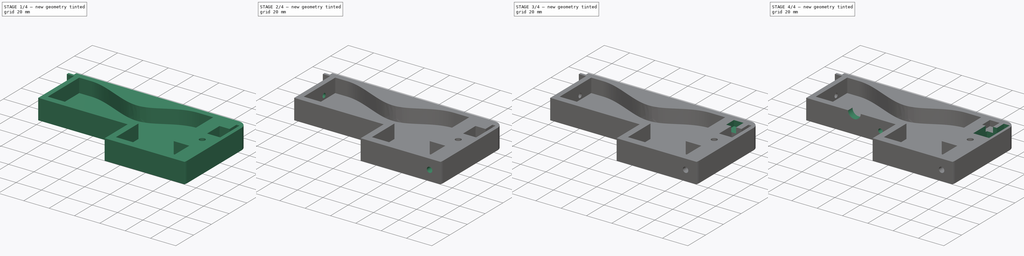
[diagram: build sequence overview — one tinted view per stage of 4, left to right]
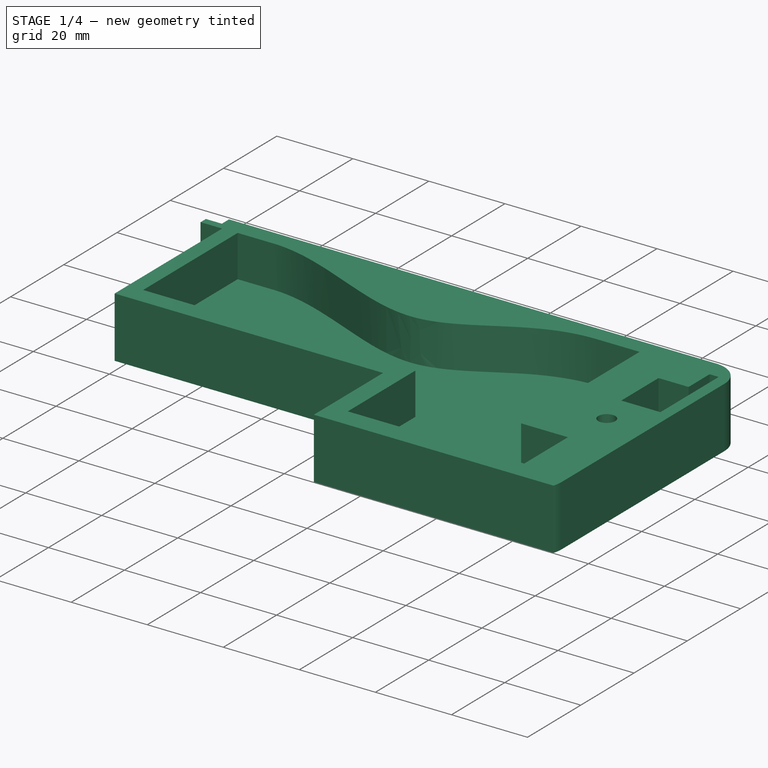
[diagram: stage 1 of 4 — iso view after this stage's code; geometry added in this stage tinted green]
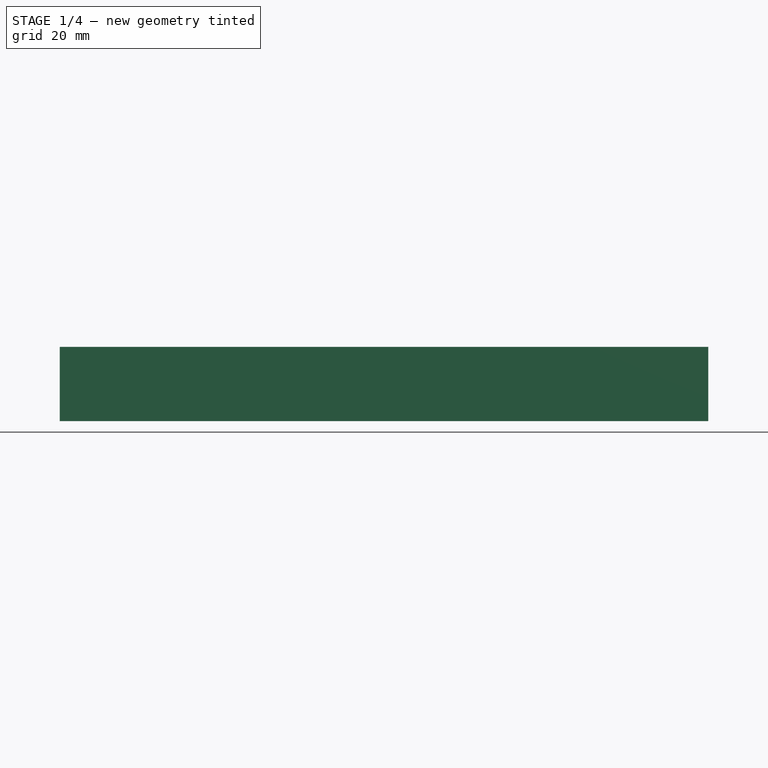
[diagram: stage 1 of 4 — front view after this stage's code; geometry added in this stage tinted green]
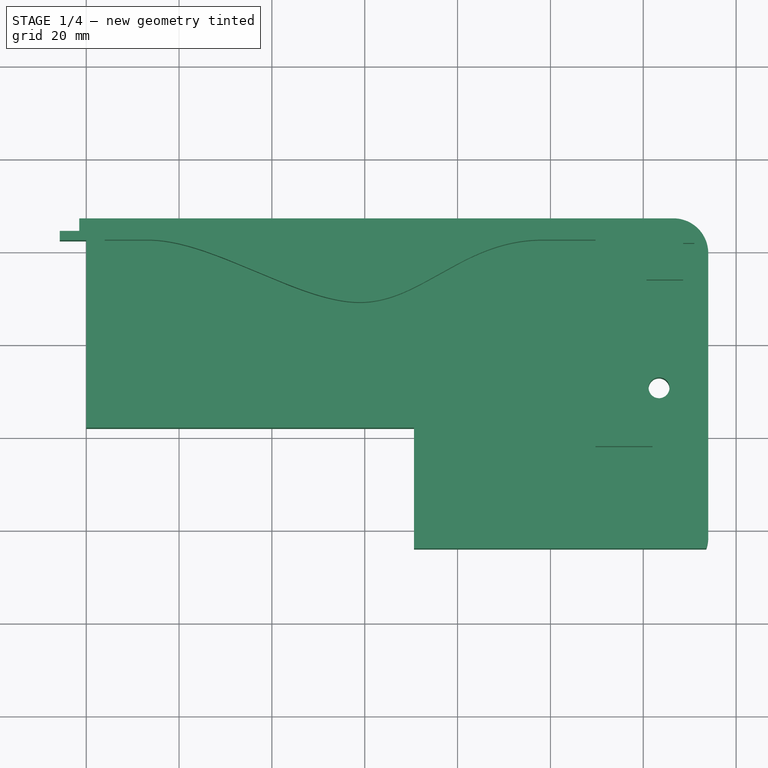
[diagram: stage 1 of 4 — top view after this stage's code; geometry added in this stage tinted green]
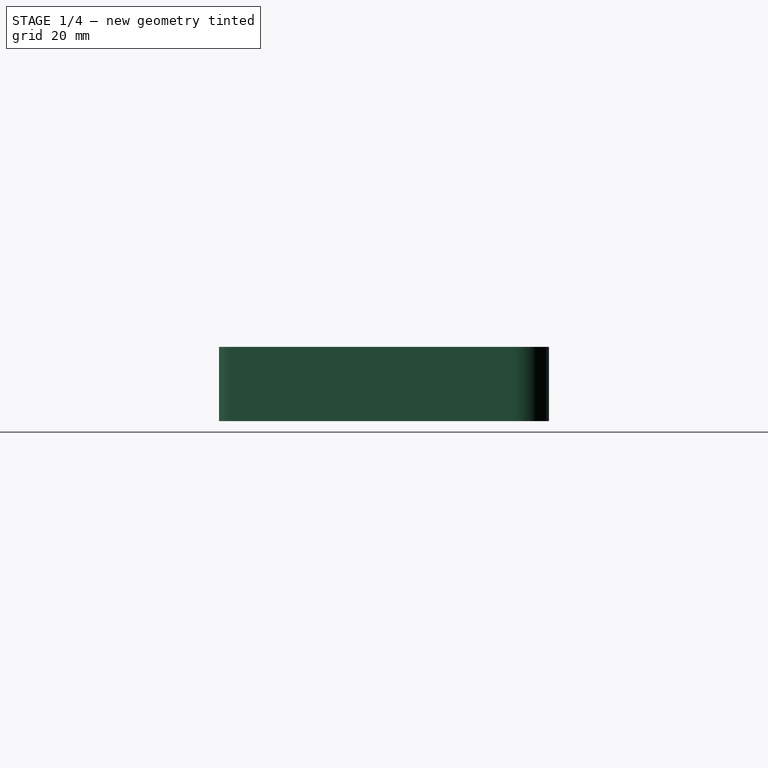
[diagram: stage 1 of 4 — right view after this stage's code; geometry added in this stage tinted green]
FCSTD DOCUMENT  (FreeCAD 0.21R33668 +7 (Git))
Label: side_front_L
License: All rights reserved
LicenseURL: http://en.wikipedia.org/wiki/All_rights_reserved
objects: Sketcher::SketchObject×9, PartDesign::Pocket×8, PartDesign::Plane×3, PartDesign::Pad×1, PartDesign::CoordinateSystem×1, PartDesign::Body×1, App::Part×1
note: 32 computed .brp shape members not serialized (recipe doc carries the construction recipe); baked Part::Feature solids carry a one-line shape summary decoded from their .brp
EXTERNAL_REF file=planB.FCStd obj=Spreadsheet

FEATURE [Sketcher::SketchObject] Sketch
  FullyConstrained = false
  MapMode = 5
  Support = -> [XY_Plane]
  expr: Constraints[26] = planB#<<data>>.clearance_m4
  sketch-geometry (27):
    g0: LineSegment StartX=75.6 StartY=36 StartZ=0 EndX=75.6 EndY=0 EndZ=0
    g1: LineSegment StartX=75.6 StartY=0 StartZ=0 EndX=134 EndY=0 EndZ=0
    g2: LineSegment StartX=126.5 StartY=107.1 StartZ=0 EndX=-1.5 EndY=107.1 EndZ=0
    g3: LineSegment StartX=-1.5 StartY=107.1 StartZ=0 EndX=-1.5 EndY=104.4 EndZ=0
    g4: LineSegment StartX=-1.5 StartY=104.4 StartZ=0 EndX=-5.7 EndY=104.4 EndZ=0
    g5: LineSegment StartX=-5.7 StartY=104.4 StartZ=0 EndX=-5.7 EndY=102.4 EndZ=0
    g6: LineSegment StartX=-5.7 StartY=102.4 StartZ=0 EndX=0 EndY=102.4 EndZ=0
    g7: Circle CenterX=123.4 CenterY=70.6 CenterZ=0 NormalX=0 NormalY=0 NormalZ=1 AngleXU=0 Radius=2.25
    g8: LineSegment StartX=134 StartY=0 StartZ=0 EndX=134 EndY=36 EndZ=0
    g9: LineSegment StartX=0 StartY=36 StartZ=0 EndX=48.7292 EndY=36 EndZ=0
    g10: LineSegment StartX=48.7292 StartY=36 StartZ=0 EndX=70.6 EndY=36 EndZ=0
    g11: LineSegment StartX=70.6 StartY=36 StartZ=0 EndX=75.6 EndY=36 EndZ=0
    g12: LineSegment StartX=0 StartY=62 StartZ=0 EndX=70.6 EndY=62 EndZ=0
    g13: LineSegment StartX=70.6 StartY=62 StartZ=0 EndX=70.6 EndY=36 EndZ=0
    g14: LineSegment StartX=0 StartY=102.4 StartZ=0 EndX=0 EndY=62 EndZ=0
    g15: LineSegment StartX=0 StartY=62 StartZ=0 EndX=0 EndY=36 EndZ=0
    g16: ArcOfCircle CenterX=126.5 CenterY=99.6 CenterZ=0 NormalX=0 NormalY=0 NormalZ=1 AngleXU=0 Radius=7.5 StartAngle=-9e-16 EndAngle=1.5708
    g17: GeomPoint X=134 Y=107.1 Z=0
    g18: LineSegment StartX=134 StartY=44.7751 StartZ=0 EndX=134 EndY=38.5 EndZ=0
    g19: LineSegment StartX=126.5 StartY=31 StartZ=0 EndX=75.6 EndY=31 EndZ=0
    g20: GeomPoint X=134 Y=31 Z=0
    g21: LineSegment StartX=75.6 StartY=36 StartZ=0 EndX=133.571 EndY=36 EndZ=0
    g22: LineSegment StartX=133.571 StartY=36 StartZ=0 EndX=134 EndY=36 EndZ=0
    g23: ArcOfCircle CenterX=126.5 CenterY=38.5 CenterZ=0 NormalX=0 NormalY=0 NormalZ=1 AngleXU=0 Radius=7.5 StartAngle=4.71239 EndAngle=5.94335
    g24: ArcOfCircle CenterX=126.5 CenterY=38.5 CenterZ=0 NormalX=0 NormalY=0 NormalZ=1 AngleXU=0 Radius=7.5 StartAngle=5.94335 EndAngle=6.28319
    g25: LineSegment StartX=134 StartY=36 StartZ=0 EndX=134 EndY=38.5 EndZ=0
    g26: LineSegment StartX=134 StartY=38.5 StartZ=0 EndX=134 EndY=99.6 EndZ=0
  constraints (72):
    c: PointOnObject(g9,g-2)
    c: Coincident(g11,g0)
    c: PointOnObject(g0,g-1)
    c: Vertical(g0)
    c: Coincident(g0,g1)
    c: PointOnObject(g1,g-1)
    c: Coincident(g1,g8)
    c: Horizontal(g2)
    c: Coincident(g2,g3)
    c: Vertical(g3)
    c: Coincident(g3,g4)
    c: Horizontal(g4)
    c: Coincident(g4,g5)
    c: Vertical(g5)
    c: Coincident(g5,g6)
    c: PointOnObject(g6,g-2)
    c: Horizontal(g6)
    c: Coincident(g6,g14)
    c: Coincident(g15,g9)
    c: Distance(g6) = 5.7
    c: Distance(g5) = 2
    c: Distance(g3) = 2.7
    c: Distance(g0) = 36
    c: DistanceX(g1) = 134
    c: DistanceY(g2) = 107.1
    c: DistanceX(g11) = 75.6
    c: Diameter(g7) = 4.5
    c: DistanceX(g7) = 123.4
    c: DistanceY(g7) = 70.6
    c: Coincident(g21,g11)
    c: Coincident(g8,g25)
    c: Vertical(g8)
    c: Coincident(g8,g22)
    c: Coincident(g9,g10)
    c: Horizontal(g9)
    c: Coincident(g10,g11)
    c: Horizontal(g10)
    c: Horizontal(g11)
    c: Horizontal(g12)
    c: Coincident(g12,g13)
    c: Coincident(g13,g11)
    c: Vertical(g13)
    c: DistanceX(g12) = 70.6
    c: DistanceY(g12) = 62
    c: Coincident(g14,g15)
    c: Coincident(g14,g12)
    c: Distance(g4) = 4.2
    c: Vertical(g14)
    c: PointOnObject(g17,g2)
    c: Tangent(g2,g16) = -1.5708
    c: Tangent(g26,g16) = -1.5708
    c: PointOnObject(g19,g0)
    c: Horizontal(g19)
    c: PointOnObject(g20,g18)
    c: PointOnObject(g20,g19)
    c: Tangent(g18,g24) = 1.5708
    c: Tangent(g19,g23) = 1.5708
    c: Vertical(g18)
    c: Diameter(g16) = 15
    c: Coincident(g21,g22)
    c: Horizontal(g21)
    c: Horizontal(g22)
    c: Distance(g19,g21) = 5
    c: Coincident(g23,g24)
    c: Coincident(g23,g24)
    c: Equal(g23,g16)
    c: Coincident(g25,g26)
    c: Vertical(g25)
    c: Vertical(g26)
    c: PointOnObject(g17,g26)
    c: Coincident(g25,g18)
    c: Coincident(g21,g23)
FEATURE [PartDesign::Pad] Pad
  Direction = (0,0,1)
  Length = 16
  Length2 = 10
  Profile = -> Sketch
  ReferenceAxis = -> Sketch [N_Axis]
  Type = 0
FEATURE [PartDesign::CoordinateSystem] LCS_0
  AttacherType = Attacher::AttachEngine3D
  MapMode = 2
  Support = -> [X_Axis001]
FEATURE [PartDesign::Plane] DatumPlane  label="insideplane"
  AttachmentOffset = pos=(0,0,5) rot=(0,0,1;0rad)
  Length = 187.985
  MapMode = 5
  Placement = pos=(0,0,5) rot=(0,0,1;0rad)
  ResizeMode = 0
  Support = -> [XY_Plane]
  Width = 161.085
FEATURE [Sketcher::SketchObject] Sketch001
  FullyConstrained = false
  MapMode = 5
  Placement = pos=(0,0,5) rot=(0,0,1;0rad)
  Support = -> [DatumPlane]
  expr: Constraints[30] = planB#<<data>>.L_thickness + 0.4 * 2
  expr: Constraints[31] = planB#<<data>>.L_size - planB#<<data>>.L_thickness
  expr: Constraints[32] = planB#<<data>>.L_size + 2 * 0.4
  sketch-geometry (39):
    g0: LineSegment StartX=116.7 StartY=102.3 StartZ=0 EndX=124.3 EndY=102.3 EndZ=0
    g1: LineSegment StartX=116.7 StartY=93.6 StartZ=0 EndX=116.7 EndY=102.3 EndZ=0
    g2: LineSegment StartX=128.6 StartY=101.8 StartZ=0 EndX=131 EndY=101.8 EndZ=0
    g3: LineSegment StartX=131 StartY=101.8 StartZ=0 EndX=131 EndY=79.9 EndZ=0
    g4: LineSegment StartX=131 StartY=79.9 StartZ=0 EndX=120.7 EndY=79.9 EndZ=0
    g5: LineSegment StartX=128.6 StartY=93.9 StartZ=0 EndX=128.6 EndY=101.8 EndZ=0
    g6: LineSegment StartX=80 StartY=41.6 StartZ=0 EndX=80 EndY=5 EndZ=0
    g7: LineSegment StartX=80 StartY=5 StartZ=0 EndX=122 EndY=5 EndZ=0
    g8: LineSegment StartX=120.7 StartY=79.9 StartZ=0 EndX=120.7 EndY=93.6 EndZ=0
    g9: LineSegment StartX=120.7 StartY=93.6 StartZ=0 EndX=120.7 EndY=93.9 EndZ=0
    g10: LineSegment StartX=124.3 StartY=102.3 StartZ=0 EndX=124.3 EndY=93.9 EndZ=0
    g11: LineSegment StartX=124.3 StartY=93.9 StartZ=0 EndX=124.3 EndY=93.6 EndZ=0
    g12: LineSegment StartX=120.7 StartY=93.9 StartZ=0 EndX=124.3 EndY=93.9 EndZ=0
    g13: LineSegment StartX=124.3 StartY=93.9 StartZ=0 EndX=128.6 EndY=93.9 EndZ=0
    g14: LineSegment StartX=124.3 StartY=93.6 StartZ=0 EndX=120.7 EndY=93.6 EndZ=0
    g15: LineSegment StartX=120.7 StartY=93.6 StartZ=0 EndX=116.7 EndY=93.6 EndZ=0
    g16-g20: Circle x5 (B-spline internal-alignment scaffolding for g21; pole/knot coordinates omitted)
    g21: BSplineCurve PolesCount=5 KnotsCount=3 Degree=3 IsPeriodic=0
    g22: GeomPoint X=13.2891 Y=102.5 Z=0
    g23: GeomPoint X=58.9375 Y=89.0501 Z=0
    g24: GeomPoint X=97.4529 Y=102.5 Z=0
    g25: LineSegment StartX=13.2891 StartY=102.5 StartZ=0 EndX=4 EndY=102.5 EndZ=0
    g26: LineSegment StartX=109.7 StartY=102.5 StartZ=0 EndX=98.3319 EndY=102.5 EndZ=0
    g27: LineSegment StartX=98.3319 StartY=102.5 StartZ=0 EndX=13.2891 EndY=102.5 EndZ=0
    g28: LineSegment StartX=109.7 StartY=58 StartZ=0 EndX=109.7 EndY=102.5 EndZ=0
    g29: LineSegment StartX=122 StartY=58 StartZ=0 EndX=109.7 EndY=58 EndZ=0
    g30: LineSegment StartX=122 StartY=5 StartZ=0 EndX=122 EndY=41.6 EndZ=0
    g31: LineSegment StartX=122 StartY=41.6 StartZ=0 EndX=122 EndY=58 EndZ=0
    g32: LineSegment StartX=122 StartY=41.6 StartZ=0 EndX=80 EndY=41.6 EndZ=0
    g33: LineSegment StartX=4 StartY=102.5 StartZ=0 EndX=4 EndY=67 EndZ=0
    g34: LineSegment StartX=4 StartY=67 StartZ=0 EndX=4 EndY=41.6 EndZ=0
    g35: LineSegment StartX=4 StartY=41.6 StartZ=0 EndX=75.6 EndY=41.6 EndZ=0
    g36: LineSegment StartX=75.6 StartY=41.6 StartZ=0 EndX=80 EndY=41.6 EndZ=0
    g37: LineSegment StartX=4 StartY=67 StartZ=0 EndX=75.6 EndY=67 EndZ=0
    g38: LineSegment StartX=75.6 StartY=67 StartZ=0 EndX=75.6 EndY=41.6 EndZ=0
  constraints (93):
    c: Coincident(g0,g10)
    c: Coincident(g11,g14)
    c: Coincident(g15,g1)
    c: Coincident(g1,g0)
    c: Horizontal(g0)
    c: Vertical(g1)
    c: Coincident(g7,g30)
    c: Coincident(g28,g26)
    c: Coincident(g25,g33)
    c: Coincident(g34,g35)
    c: Horizontal(g2)
    c: Coincident(g2,g3)
    c: Vertical(g3)
    c: Coincident(g3,g4)
    c: Horizontal(g4)
    c: Coincident(g4,g8)
    c: Coincident(g9,g12)
    c: Coincident(g13,g5)
    c: Coincident(g5,g2)
    c: Vertical(g5)
    c: Coincident(g36,g6)
    c: Coincident(g6,g7)
    c: Horizontal(g7)
    c: Vertical(g6)
    c: DistanceX(g-2,g25) = 4
    c: DistanceY(g34) = 41.6
    c: DistanceY(g6) = 5
    c: DistanceX(g6) = 80
    c: DistanceY(g0) = 102.3
    c: DistanceY(g11) = 93.6
    c: Distance(g2) = 2.4
    c: Distance(g5) = 7.9
    c: Distance(g4) = 10.3
    c: DistanceX(g13) = 128.6
    c: Coincident(g8,g9)
    c: Vertical(g8)
    c: Vertical(g9)
    c: Distance(g8,g9) = 14
    c: Coincident(g10,g11)
    c: Vertical(g10)
    c: Vertical(g11)
    c: Coincident(g12,g13)
    c: Horizontal(g12)
    c: Horizontal(g13)
    c: Coincident(g10,g12)
    c: Coincident(g14,g15)
    c: Horizontal(g14)
    c: Horizontal(g15)
    c: Distance(g9,g14) = 0.3
    c: Coincident(g14,g8)
    c: DistanceX(g0) = 124.3
    c: DistanceX(g0) = 116.7
    c: DistanceY(g25) = 102.5
    c: Weight(g16) = 1
    c: Equal(g16, g17-g20) x4
    c: InternalAlignment(g16-g20 -> g21) x5
    c: InternalAlignment(g22,g21)
    c: InternalAlignment(g23,g21)
    c: Coincident(g27,g25)
    c: Horizontal(g25)
    c: PointOnObject(g17,g25)
    c: Coincident(g26,g27)
    c: Horizontal(g26)
    c: Horizontal(g27)
    c: PointOnObject(g19,g26)
    c: Coincident(g21,g25)
    c: Coincident(g26,g21)
    c: Coincident(g29,g28)
    c: Vertical(g28)
    c: Distance(g1,g28) = 7
    c: Coincident(g31,g29)
    c: Horizontal(g29)
    c: DistanceX(g31) = 122
    c: DistanceY(g28) = 58
    c: Coincident(g30,g31)
    c: Vertical(g30)
    c: Vertical(g31)
    c: Coincident(g32,g31)
    c: Coincident(g32,g36)
    c: Horizontal(g32)
    c: Coincident(g33,g34)
    c: Vertical(g33)
    c: Vertical(g34)
    c: Coincident(g35,g36)
    c: Horizontal(g35)
    c: Horizontal(g36)
    c: Coincident(g33,g37)
    c: Horizontal(g37)
    c: Coincident(g37,g38)
    c: Coincident(g38,g36)
    c: Vertical(g38)
    c: DistanceX(g37) = 75.6
    c: DistanceY(g37) = 67
FEATURE [PartDesign::Pocket] Pocket
  BaseFeature = -> Pad
  Direction = (0,0,-1)
  Length = 21
  Length2 = 5
  Profile = -> Sketch001
  ReferenceAxis = -> Sketch001 [N_Axis]
  Reversed = true
  Type = 0
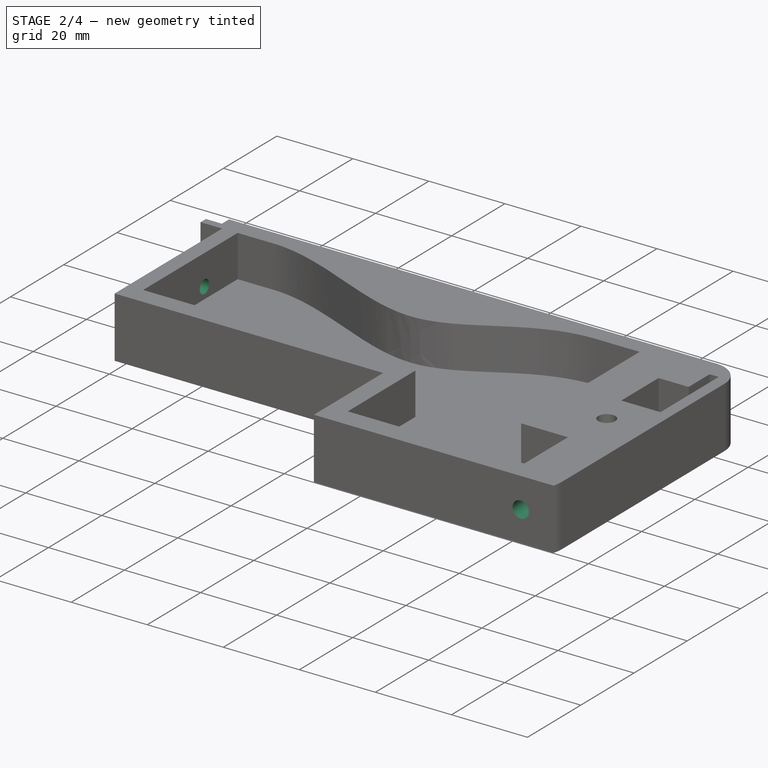
[diagram: stage 2 of 4 — iso view after this stage's code; geometry added in this stage tinted green]
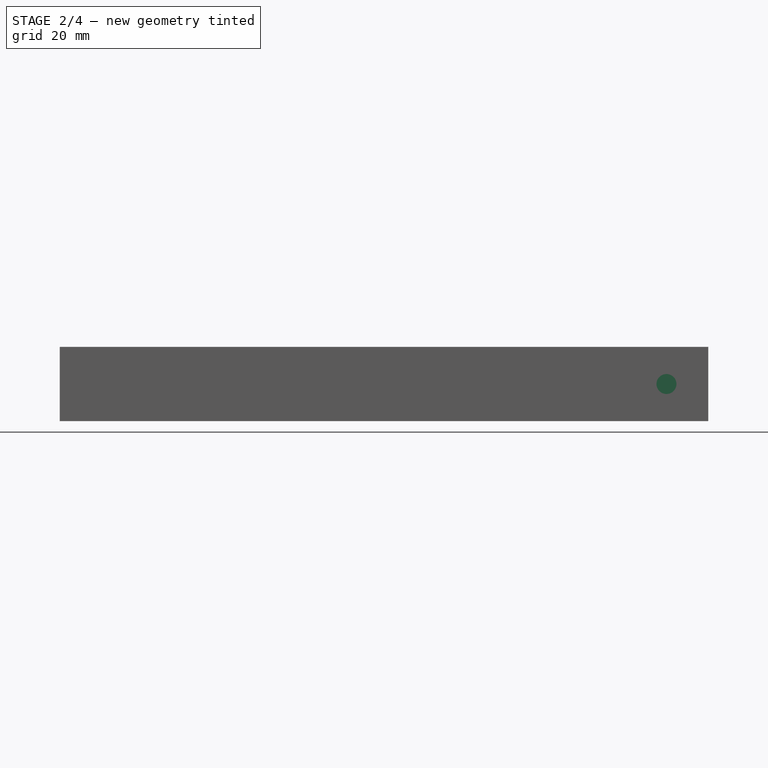
[diagram: stage 2 of 4 — front view after this stage's code; geometry added in this stage tinted green]
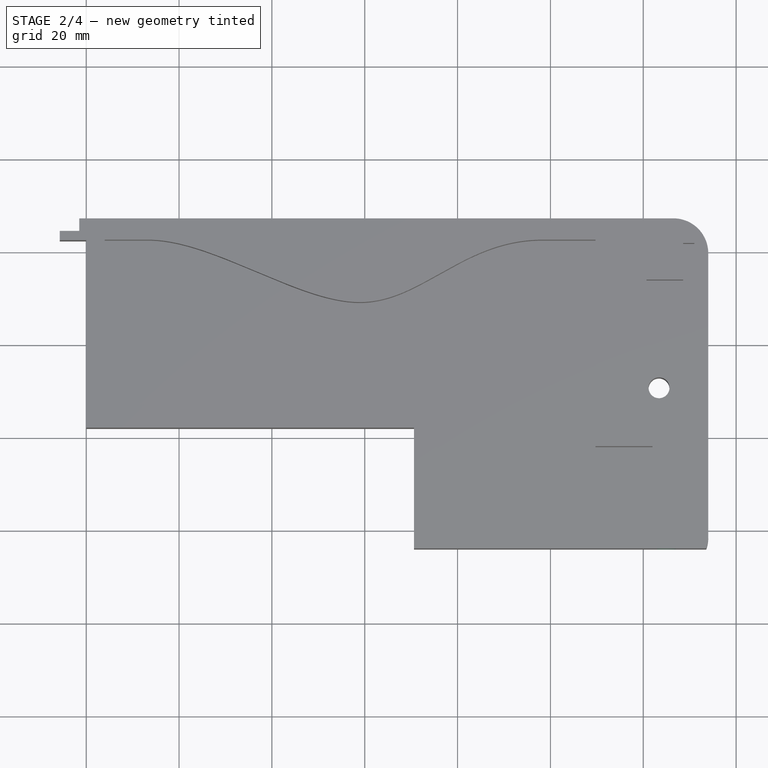
[diagram: stage 2 of 4 — top view after this stage's code; geometry added in this stage tinted green]
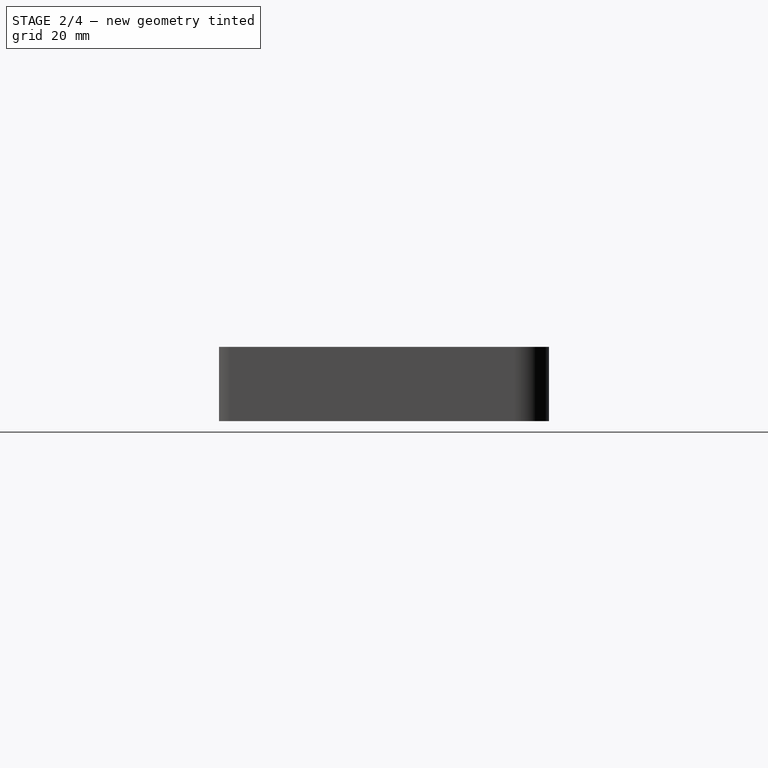
[diagram: stage 2 of 4 — right view after this stage's code; geometry added in this stage tinted green]
FEATURE [Sketcher::SketchObject] Sketch002
  FullyConstrained = false
  MapMode = 5
  Placement = pos=(0,0,0) rot=(0.57735,0.57735,0.57735;2.0944rad)
  Support = -> [YZ_Plane]
  expr: Constraints[0] = planB#<<data>>.clearance_m3
  sketch-geometry (4):
    g0: Circle CenterX=12 CenterY=8 CenterZ=0 NormalX=0 NormalY=0 NormalZ=1 AngleXU=0 Radius=1.75
    g1: LineSegment StartX=12 StartY=8 StartZ=0 EndX=134.137 EndY=8 EndZ=0
    g2: Circle CenterX=60 CenterY=8 CenterZ=0 NormalX=0 NormalY=0 NormalZ=1 AngleXU=0 Radius=1.75
    g3: Circle CenterX=90 CenterY=8 CenterZ=0 NormalX=0 NormalY=0 NormalZ=1 AngleXU=0 Radius=1.75
  constraints (11):
    c: Diameter(g0) = 3.5
    c: DistanceY(g0) = 8
    c: DistanceX(g0) = 12
    c: Coincident(g1,g0)
    c: Horizontal(g1)
    c: PointOnObject(g2,g1)
    c: PointOnObject(g3,g1)
    c: Equal(g0,g2)
    c: Equal(g2,g3)
    c: DistanceX(g2) = 60
    c: DistanceX(g3) = 90
FEATURE [PartDesign::Pocket] Pocket001
  BaseFeature = -> Pocket
  Direction = (-1,2e-16,-3e-16)
  Length = 23
  Length2 = 5
  Profile = -> Sketch002
  ReferenceAxis = -> Sketch002 [N_Axis]
  Reversed = true
  Type = 0
FEATURE [Sketcher::SketchObject] Sketch003
  FullyConstrained = true
  MapMode = 5
  Placement = pos=(0,0,0) rot=(1,0,0;1.5708rad)
  Support = -> [XZ_Plane]
  expr: Constraints[5] = planB#<<data>>.clearance_m3
  expr: Constraints[9] = planB#<<data>>.insert_diameter
  sketch-geometry (4):
    g0: Circle CenterX=58.6 CenterY=8 CenterZ=0 NormalX=0 NormalY=0 NormalZ=1 AngleXU=0 Radius=1.75
    g1: Circle CenterX=8 CenterY=8 CenterZ=0 NormalX=0 NormalY=0 NormalZ=1 AngleXU=0 Radius=1.75
    g2: LineSegment StartX=58.6 StartY=8 StartZ=0 EndX=8 EndY=8 EndZ=0
    g3: Circle CenterX=125 CenterY=8 CenterZ=0 NormalX=0 NormalY=0 NormalZ=1 AngleXU=0 Radius=2.15
  constraints (11):
    c: Coincident(g2,g0)
    c: Coincident(g2,g1)
    c: Horizontal(g2)
    c: DistanceY(g1) = 8
    c: Equal(g1,g0)
    c: Diameter(g0) = 3.5
    c: DistanceX(g-2,g1) = 8
    c: DistanceX(g0) = 58.6
    c: PointOnObject(g3,g2)
    c: Diameter(g3) = 4.3
    c: DistanceX(g3) = 125
FEATURE [PartDesign::Pocket] Pocket002
  BaseFeature = -> Pocket001
  Direction = (0,1,2e-16)
  Length = 46
  Length2 = 5
  Profile = -> Sketch003
  ReferenceAxis = -> Sketch003 [N_Axis]
  Type = 0
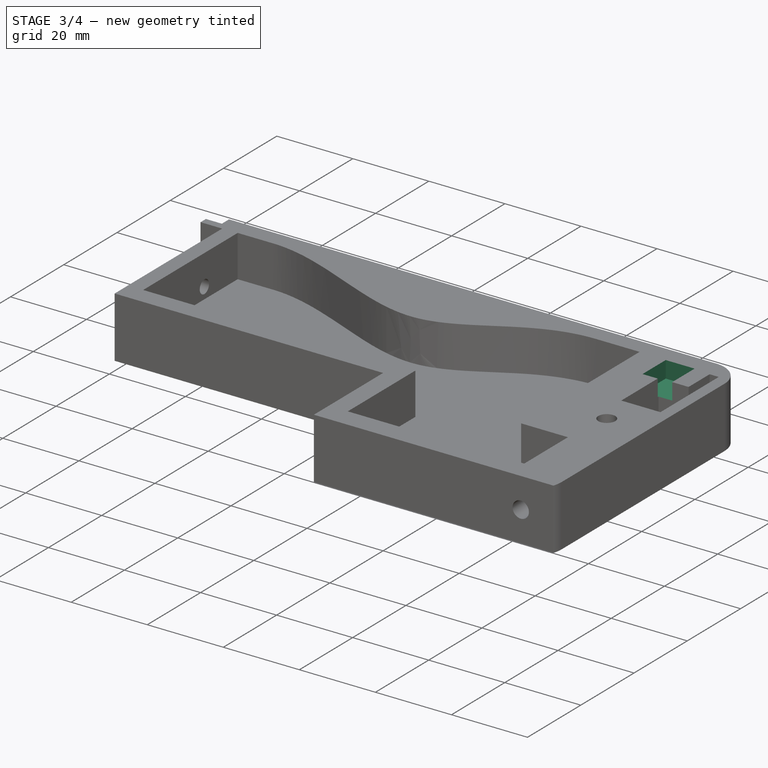
[diagram: stage 3 of 4 — iso view after this stage's code; geometry added in this stage tinted green]
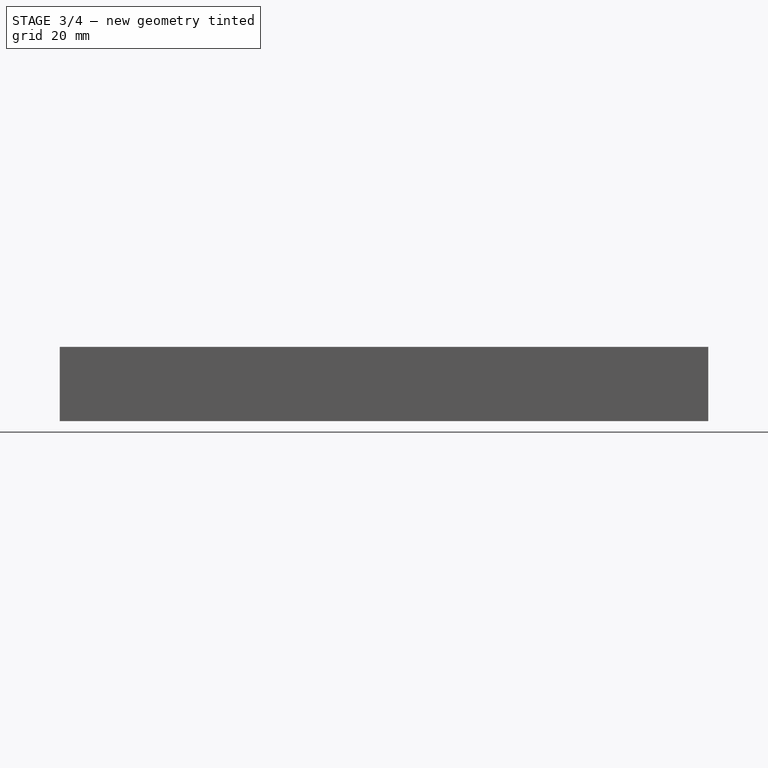
[diagram: stage 3 of 4 — front view after this stage's code; geometry added in this stage tinted green]
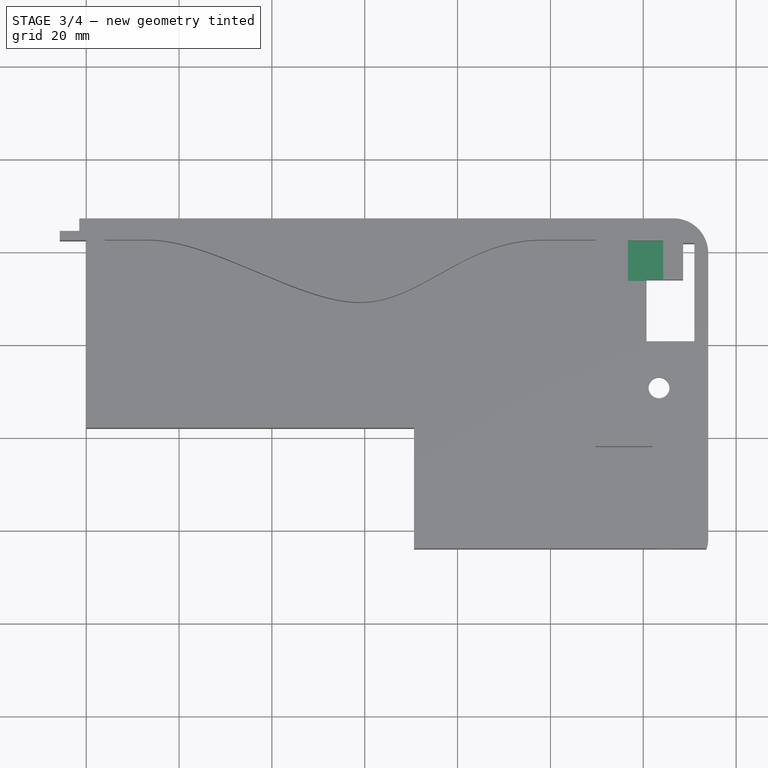
[diagram: stage 3 of 4 — top view after this stage's code; geometry added in this stage tinted green]
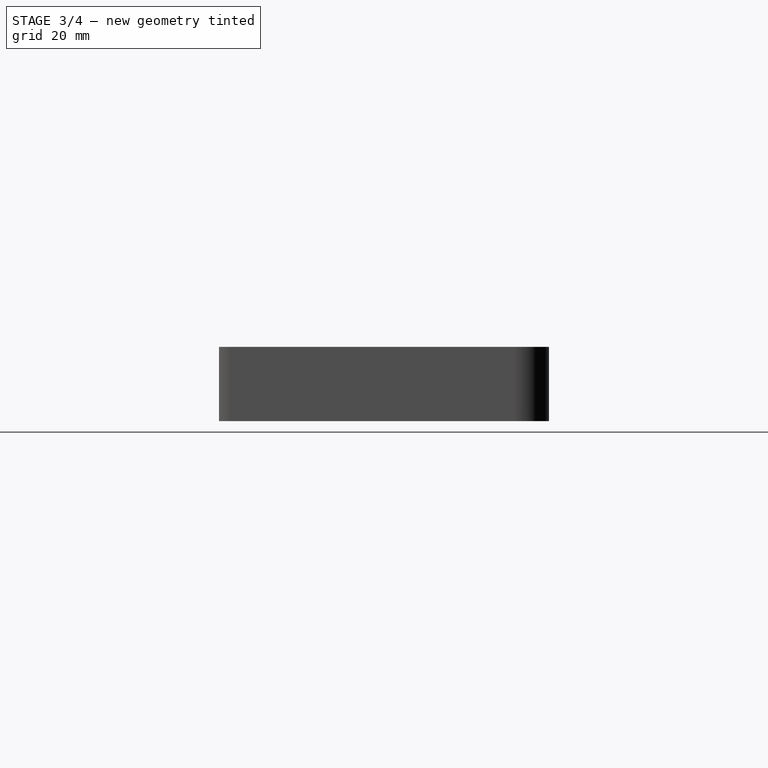
[diagram: stage 3 of 4 — right view after this stage's code; geometry added in this stage tinted green]
FEATURE [PartDesign::Plane] DatumPlane001
  AttachmentOffset = pos=(0,0,107) rot=(0,0,1;0rad)
  Length = 148.354
  MapMode = 5
  Placement = pos=(107,-2.38e-14,2.38e-14) rot=(0.57735,0.57735,0.57735;2.0944rad)
  ResizeMode = 0
  Support = -> [YZ_Plane]
  Width = 66.2542
FEATURE [Sketcher::SketchObject] Sketch005
  FullyConstrained = true
  MapMode = 5
  Placement = pos=(0,0,5) rot=(0,0,1;0rad)
  Support = -> [DatumPlane]
  sketch-geometry (1):
    g0: Circle CenterX=123.4 CenterY=70.6 CenterZ=0 NormalX=0 NormalY=0 NormalZ=1 AngleXU=0 Radius=8
  constraints (3):
    c: DistanceX(g0) = 123.4
    c: DistanceY(g0) = 70.6
    c: Diameter(g0) = 16
FEATURE [PartDesign::Pocket] Pocket004
  BaseFeature = -> Pocket002
  Direction = (0,0,-1)
  Length = 10
  Length2 = 5
  Midplane = true
  Profile = -> Sketch005
  ReferenceAxis = -> Sketch005 [N_Axis]
  Type = 0
FEATURE [Sketcher::SketchObject] Sketch007
  FullyConstrained = true
  MapMode = 5
  Placement = pos=(0,0,5) rot=(0,0,1;0rad)
  Support = -> [DatumPlane]
  sketch-geometry (4):
    g0: LineSegment StartX=131 StartY=101.8 StartZ=0 EndX=120.5 EndY=101.8 EndZ=0
    g1: LineSegment StartX=120.5 StartY=101.8 StartZ=0 EndX=120.5 EndY=80.8 EndZ=0
    g2: LineSegment StartX=120.5 StartY=80.8 StartZ=0 EndX=131 EndY=80.8 EndZ=0
    g3: LineSegment StartX=131 StartY=80.8 StartZ=0 EndX=131 EndY=101.8 EndZ=0
  constraints (12):
    c: Coincident(g0,g1)
    c: Coincident(g1,g2)
    c: Coincident(g2,g3)
    c: Coincident(g3,g0)
    c: Horizontal(g0)
    c: Horizontal(g2)
    c: Vertical(g1)
    c: Vertical(g3)
    c: Distance(g2) = 10.5
    c: Distance(g3) = 21
    c: DistanceY(g0) = 101.8
    c: DistanceX(g0) = 131
FEATURE [Sketcher::SketchObject] Sketch008
  FullyConstrained = false
  MapMode = 5
  Placement = pos=(0,0,5) rot=(0,0,1;0rad)
  Support = -> [DatumPlane]
  sketch-geometry (6):
    g0: LineSegment StartX=127.329 StartY=102.8 StartZ=0 EndX=132 EndY=102.8 EndZ=0
    g1: LineSegment StartX=132 StartY=102.8 StartZ=0 EndX=132 EndY=79.4945 EndZ=0
    g2: LineSegment StartX=132 StartY=79.4945 StartZ=0 EndX=119.5 EndY=79.4945 EndZ=0
    g3: LineSegment StartX=119.5 StartY=79.4945 StartZ=0 EndX=119.5 EndY=94.9604 EndZ=0
    g4: LineSegment StartX=119.5 StartY=94.9604 StartZ=0 EndX=127.329 EndY=94.9604 EndZ=0
    g5: LineSegment StartX=127.329 StartY=94.9604 StartZ=0 EndX=127.329 EndY=102.8 EndZ=0
  constraints (15):
    c: Coincident(g0,g1)
    c: Vertical(g1)
    c: Coincident(g1,g2)
    c: Horizontal(g2)
    c: Coincident(g2,g3)
    c: Vertical(g3)
    c: Coincident(g3,g4)
    c: Horizontal(g4)
    c: Coincident(g4,g5)
    c: Coincident(g5,g0)
    c: Vertical(g5)
    c: Horizontal(g0)
    c: DistanceX(g0) = 132
    c: DistanceY(g0) = 102.8
    c: DistanceX(g2) = 119.5
FEATURE [PartDesign::Plane] DatumPlane002  label="oppoplane"
  AttachmentOffset = pos=(0,0,16) rot=(0,0,1;0rad)
  Length = 187.985
  MapMode = 5
  Placement = pos=(0,0,16) rot=(0,0,1;0rad)
  ResizeMode = 0
  Support = -> [XY_Plane]
  Width = 161.085
FEATURE [Sketcher::SketchObject] Sketch006
  FullyConstrained = false
  MapMode = 5
  Placement = pos=(0,0,16) rot=(0,0,1;0rad)
  Support = -> [DatumPlane002]
  sketch-geometry (6):
    g0: LineSegment StartX=116.7 StartY=102.3 StartZ=0 EndX=124.3 EndY=102.3 EndZ=0
    g1: LineSegment StartX=116.7 StartY=93.6 StartZ=0 EndX=116.7 EndY=102.3 EndZ=0
    g2: LineSegment StartX=124.3 StartY=102.3 StartZ=0 EndX=124.3 EndY=93.9 EndZ=0
    g3: LineSegment StartX=124.3 StartY=93.9 StartZ=0 EndX=124.3 EndY=93.6 EndZ=0
    g4: LineSegment StartX=124.3 StartY=93.6 StartZ=0 EndX=120.7 EndY=93.6 EndZ=0
    g5: LineSegment StartX=120.7 StartY=93.6 StartZ=0 EndX=116.7 EndY=93.6 EndZ=0
  constraints (16):
    c: Horizontal(g0)
    c: Vertical(g1)
    c: DistanceY(g0) = 102.3
    c: DistanceY(g3) = 93.6
    c: Vertical(g2)
    c: Vertical(g3)
    c: Horizontal(g4)
    c: Horizontal(g5)
    c: DistanceX(g0) = 124.3
    c: DistanceX(g0) = 116.7
    c: Coincident(g0,g1)
    c: Coincident(g0,g2)
    c: Coincident(g3,g4)
    c: Coincident(g2,g3)
    c: Coincident(g4,g5)
    c: Coincident(g1,g5)
FEATURE [PartDesign::Pocket] Pocket005
  BaseFeature = -> Pocket004
  Direction = (0,0,-1)
  Length = 4.4
  Length2 = 5
  Profile = -> Sketch006
  ReferenceAxis = -> Sketch006 [N_Axis]
  Type = 0
FEATURE [PartDesign::Pocket] Pocket006
  BaseFeature = -> Pocket005
  Direction = (0,0,-1)
  Length = 6
  Length2 = 5
  Profile = -> Sketch007
  ReferenceAxis = -> Sketch007 [N_Axis]
  Type = 0
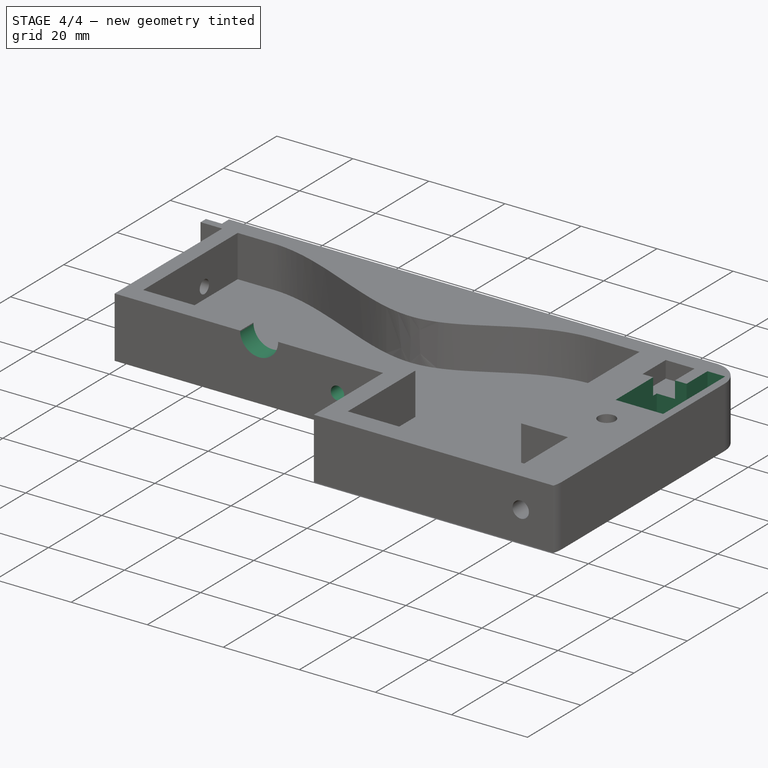
[diagram: stage 4 of 4 — iso view after this stage's code; geometry added in this stage tinted green]
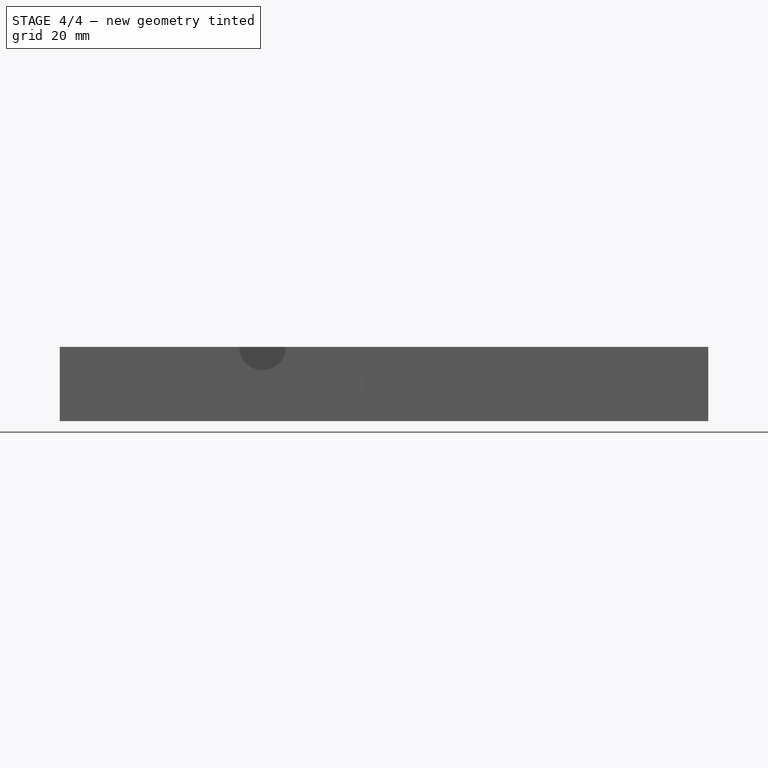
[diagram: stage 4 of 4 — front view after this stage's code; geometry added in this stage tinted green]
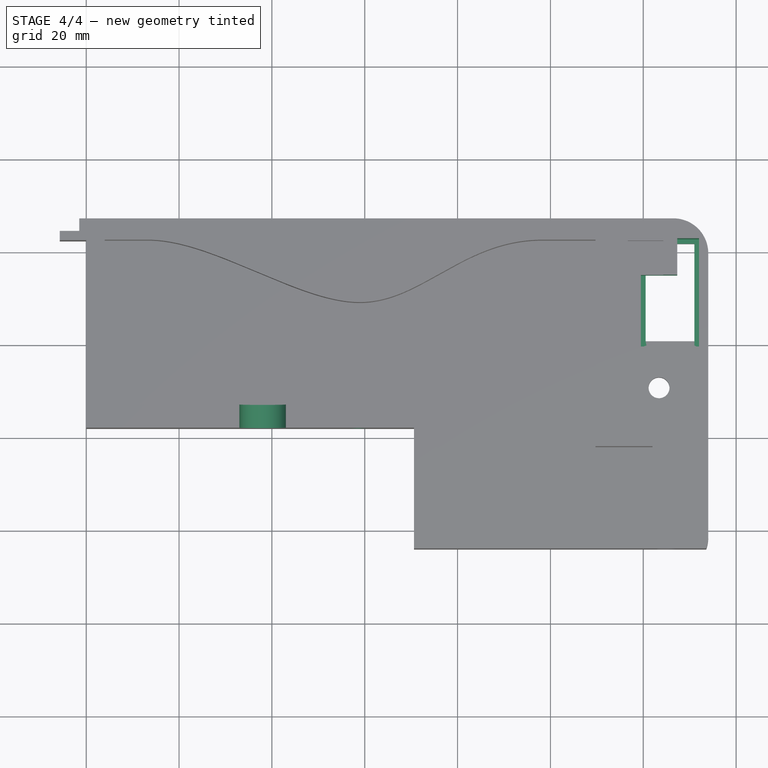
[diagram: stage 4 of 4 — top view after this stage's code; geometry added in this stage tinted green]
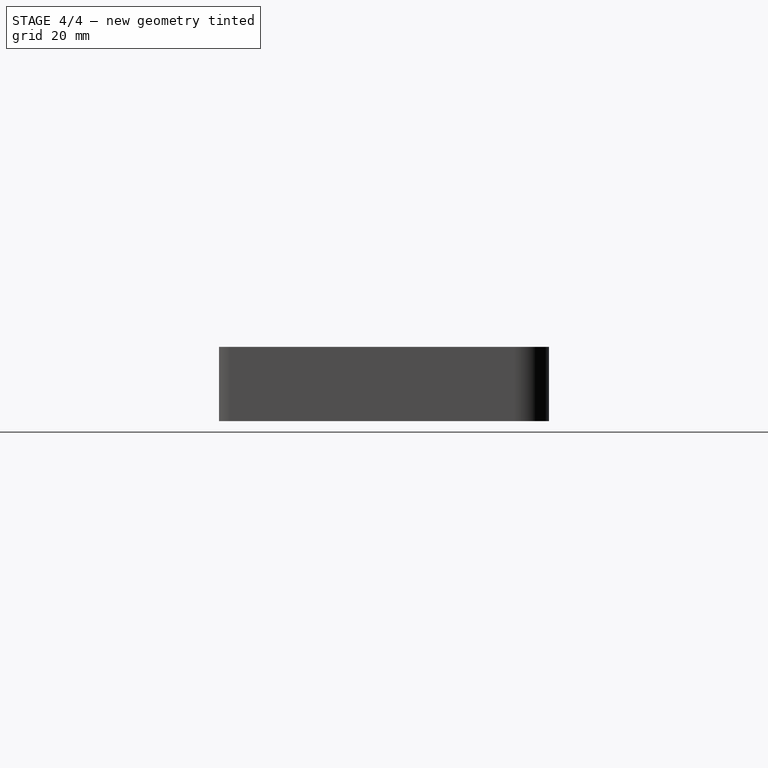
[diagram: stage 4 of 4 — right view after this stage's code; geometry added in this stage tinted green]
FEATURE [Sketcher::SketchObject] Sketch009
  FullyConstrained = false
  MapMode = 5
  Placement = pos=(0,0,0) rot=(1,0,0;1.5708rad)
  Support = -> [XZ_Plane]
  expr: Constraints[5] = planB#<<data>>.clearance_m3
  expr: Constraints[9] = planB#<<data>>.insert_diameter
  sketch-geometry (8):
    g0: Circle CenterX=58.6 CenterY=8 CenterZ=0 NormalX=0 NormalY=0 NormalZ=1 AngleXU=0 Radius=1.75
    g1: Circle CenterX=8 CenterY=8 CenterZ=0 NormalX=0 NormalY=0 NormalZ=1 AngleXU=0 Radius=1.75
    g2: LineSegment StartX=58.6 StartY=8 StartZ=0 EndX=8 EndY=8 EndZ=0
    g3: Circle CenterX=125 CenterY=8 CenterZ=0 NormalX=0 NormalY=0 NormalZ=1 AngleXU=0 Radius=2.15
    g4: ArcOfCircle CenterX=38 CenterY=16 CenterZ=0 NormalX=0 NormalY=0 NormalZ=1 AngleXU=0 Radius=5 StartAngle=3.14159 EndAngle=6.28319
    g5: ArcOfCircle CenterX=38 CenterY=31.6735 CenterZ=0 NormalX=0 NormalY=0 NormalZ=1 AngleXU=0 Radius=5 StartAngle=2e-16 EndAngle=3.14159
    g6: LineSegment StartX=43 StartY=16 StartZ=0 EndX=43 EndY=31.6735 EndZ=0
    g7: LineSegment StartX=33 StartY=31.6735 StartZ=0 EndX=33 EndY=16 EndZ=0
  constraints (20):
    c: Coincident(g2,g0)
    c: Coincident(g2,g1)
    c: Horizontal(g2)
    c: DistanceY(g1) = 8
    c: Equal(g1,g0)
    c: Diameter(g0) = 3.5
    c: DistanceX(g-2,g1) = 8
    c: DistanceX(g0) = 58.6
    c: PointOnObject(g3,g2)
    c: Diameter(g3) = 4.3
    c: DistanceX(g3) = 125
    c: Tangent(g4,g6) = -1.5708
    c: Tangent(g6,g5) = -1.5708
    c: Tangent(g5,g7) = -1.5708
    c: Tangent(g7,g4) = -1.5708
    c: Equal(g4,g5)
    c: Vertical(g6)
    c: DistanceX(g4) = 38
    c: DistanceY(g4) = 16
    c: Diameter(g4) = 10
FEATURE [PartDesign::Pocket] Pocket007
  BaseFeature = -> Pocket006
  Direction = (0,0,-1)
  Length = 18
  Length2 = 5
  Profile = -> Sketch008
  ReferenceAxis = -> Sketch008 [N_Axis]
  Reversed = true
  Type = 0
FEATURE [PartDesign::Pocket] Pocket008
  BaseFeature = -> Pocket007
  Direction = (0,1,2e-16)
  Length = 86
  Length2 = 5
  Profile = -> Sketch009
  ReferenceAxis = -> Sketch009 [N_Axis]
  Type = 0
FEATURE [PartDesign::Body] Body
  Group = -> [Sketch,Pad,DatumPlane,Sketch001,Pocket,Sketch002,Pocket001,Sketch003,Pocket002,DatumPlane001,Sketch005,Pocket004,Sketch006,Pocket005,Sketch007,Pocket006,Sketch008,Pocket007,DatumPlane002,Sketch009,Pocket008]
  Origin = -> Origin
  Tip = -> Pocket008
FEATURE [App::Part] side_front_L  label="side_front_R"
  Group = -> [LCS_0,Body]
  Origin = -> Origin001
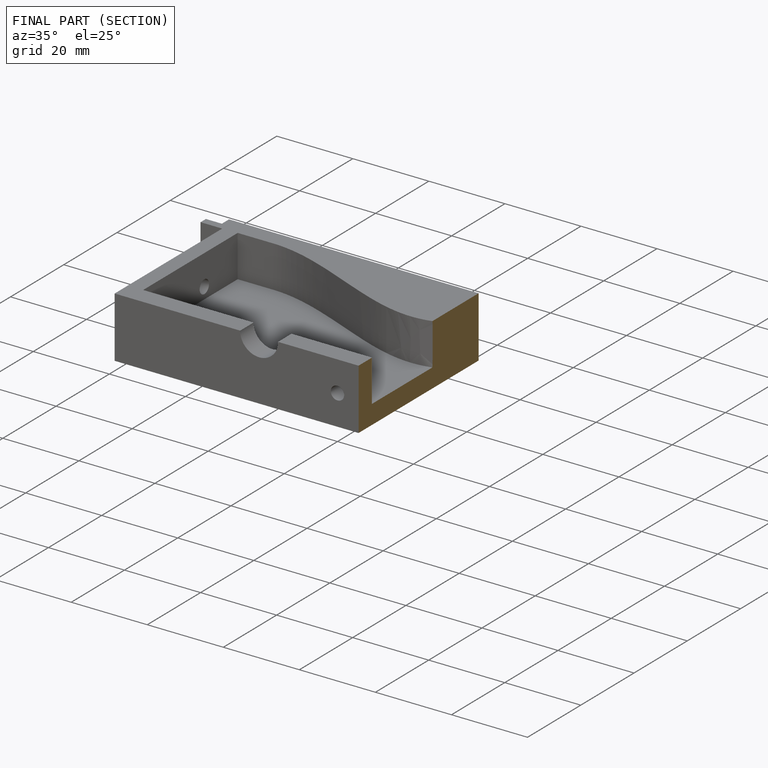
[diagram: finished part — half-section view (interior)]
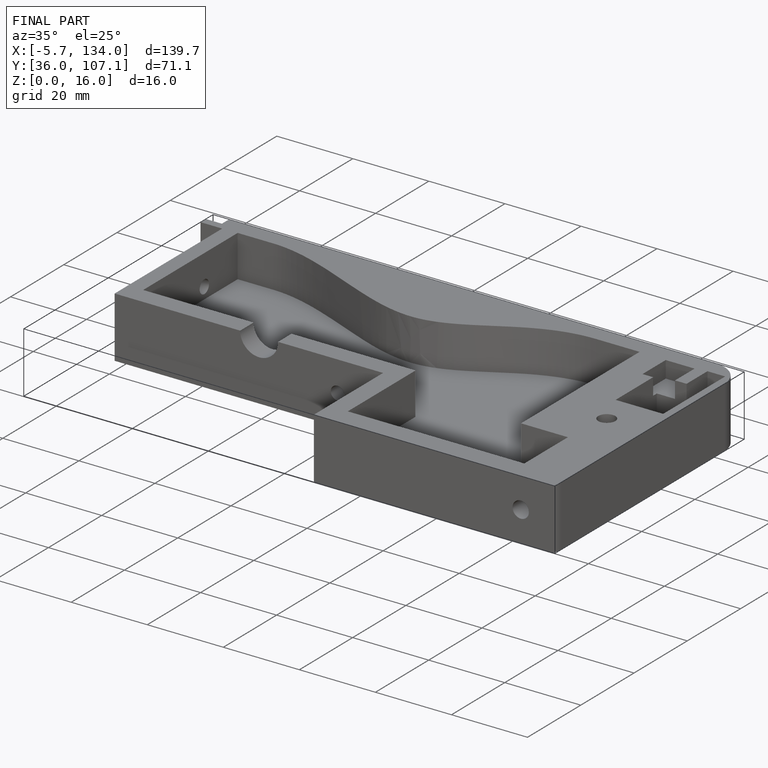
[diagram: finished part — iso view with bounding-box wireframe]
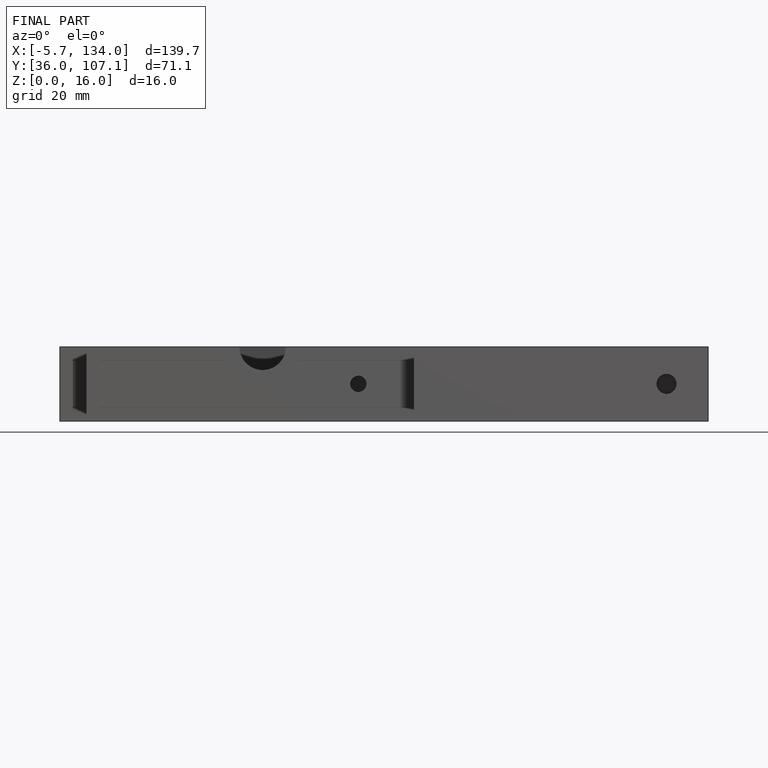
[diagram: finished part — front view with bounding-box wireframe]
